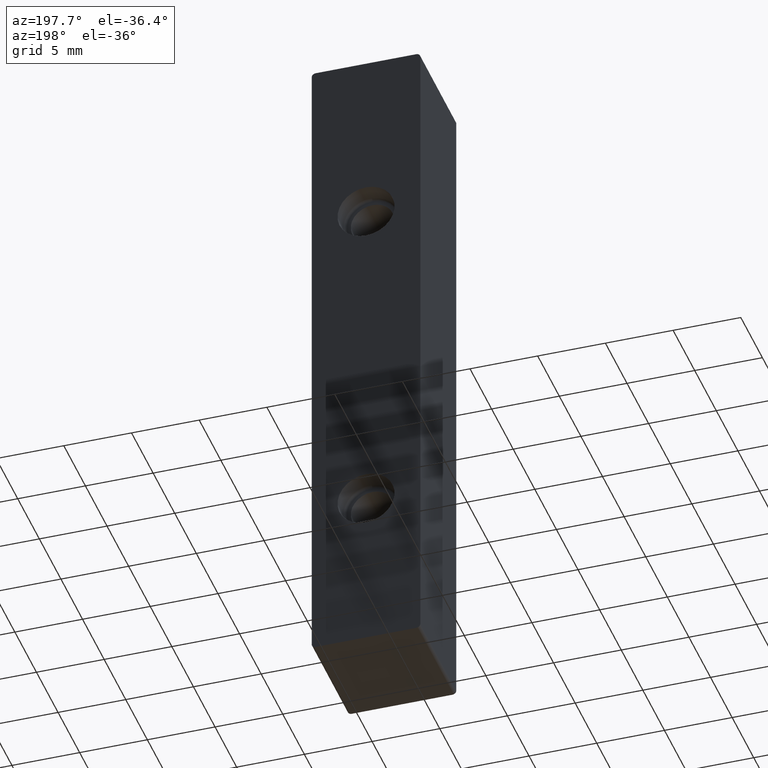
[diagram: clean part render]
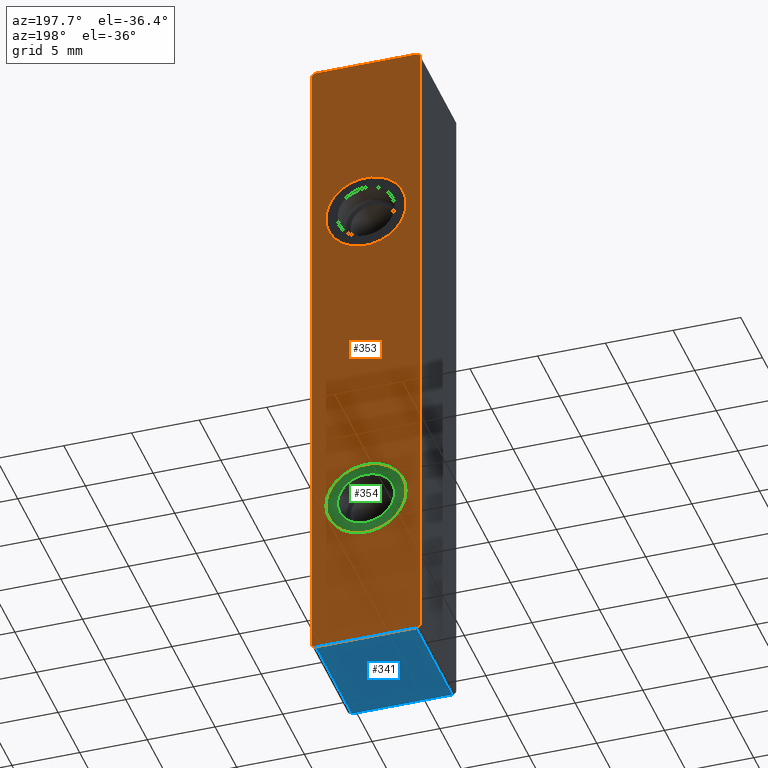
[diagram: same view with three faces highlighted in distinct colors, each labeled with its STEP entity id]
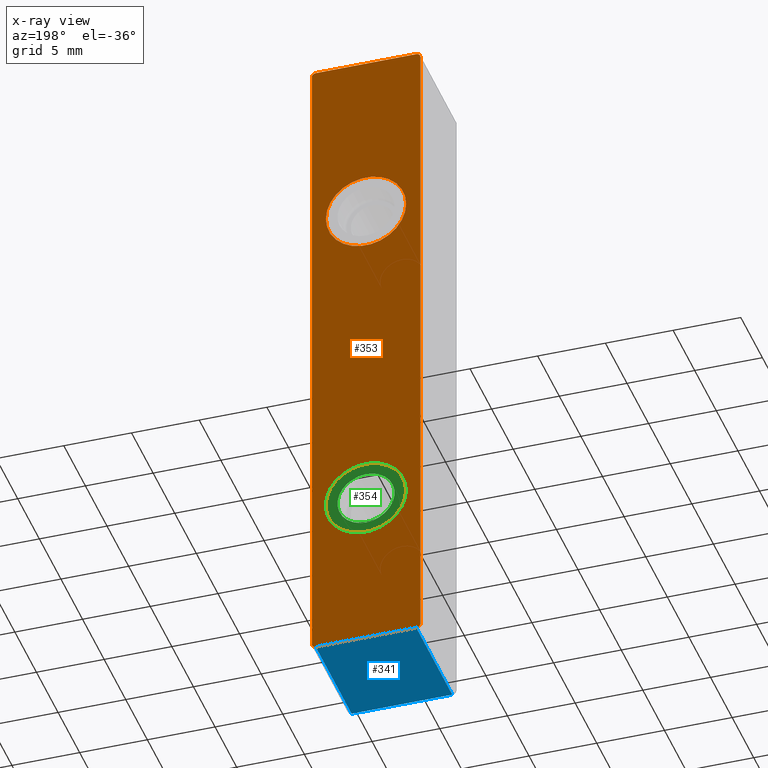
[diagram: x-ray of the same camera — body ghosted, the three highlighted faces saturated]
A machine part, auxiliary view with three faces highlighted in distinct colors.
The next image is the same camera in x-ray (body ghosted, the three faces saturated) — at least one of them is partly hidden behind the body in this view.
Their STEP definitions:

[orange] entity #353 — the highlighted planar face has unit normal (0, -1, 0).
#29=FACE_BOUND('',#73,.T.);
#30=FACE_BOUND('',#74,.T.);
#47=FACE_OUTER_BOUND('',#72,.T.);
#72=EDGE_LOOP('',(#294,#295,#296,#297,#298,#299,#300,#301));
#73=EDGE_LOOP('',(#302));
#74=EDGE_LOOP('',(#303));
#92=LINE('',#574,#117);
#95=LINE('',#582,#120);
#101=LINE('',#619,#126);
#102=LINE('',#622,#127);
#117=VECTOR('',#457,9.8814229);
#120=VECTOR('',#466,9.8814229);
#126=VECTOR('',#514,9.8814229);
#127=VECTOR('',#517,9.8814229);
#139=CIRCLE('',#391,0.296442686999985);
#140=CIRCLE('',#394,0.296442686999998);
#141=CIRCLE('',#397,0.296442686999991);
#152=CIRCLE('',#417,0.296442687000001);
#153=CIRCLE('',#418,2.96442687);
#154=CIRCLE('',#419,2.96442687);
#167=VERTEX_POINT('',#566);
#168=VERTEX_POINT('',#568);
#169=VERTEX_POINT('',#572);
#170=VERTEX_POINT('',#576);
#171=VERTEX_POINT('',#580);
#172=VERTEX_POINT('',#584);
#181=VERTEX_POINT('',#618);
#182=VERTEX_POINT('',#620);
#183=VERTEX_POINT('',#623);
#184=VERTEX_POINT('',#625);
#200=EDGE_CURVE('',#168,#167,#139,.T.);
#203=EDGE_CURVE('',#167,#169,#92,.T.);
#205=EDGE_CURVE('',#169,#170,#140,.T.);
#207=EDGE_CURVE('',#170,#171,#95,.T.);
#209=EDGE_CURVE('',#171,#172,#141,.T.);
#224=EDGE_CURVE('',#172,#181,#101,.T.);
#225=EDGE_CURVE('',#181,#182,#152,.T.);
#226=EDGE_CURVE('',#182,#168,#102,.T.);
#227=EDGE_CURVE('',#183,#183,#153,.T.);
#228=EDGE_CURVE('',#184,#184,#154,.T.);
#294=ORIENTED_EDGE('',*,*,#205,.T.);
#295=ORIENTED_EDGE('',*,*,#207,.T.);
#296=ORIENTED_EDGE('',*,*,#209,.T.);
#297=ORIENTED_EDGE('',*,*,#224,.T.);
#298=ORIENTED_EDGE('',*,*,#225,.T.);
#299=ORIENTED_EDGE('',*,*,#226,.T.);
#300=ORIENTED_EDGE('',*,*,#200,.T.);
#301=ORIENTED_EDGE('',*,*,#203,.T.);
#302=ORIENTED_EDGE('',*,*,#227,.F.);
#303=ORIENTED_EDGE('',*,*,#228,.F.);
#333=PLANE('',#416);
#353=ADVANCED_FACE('',(#47,#29,#30),#333,.F.);
#391=AXIS2_PLACEMENT_3D('',#569,#451,#452);
#394=AXIS2_PLACEMENT_3D('',#578,#461,#462);
#397=AXIS2_PLACEMENT_3D('',#586,#470,#471);
#416=AXIS2_PLACEMENT_3D('',#617,#512,#513);
#417=AXIS2_PLACEMENT_3D('',#621,#515,#516);
#418=AXIS2_PLACEMENT_3D('',#624,#518,#519);
#419=AXIS2_PLACEMENT_3D('',#626,#520,#521);
#451=DIRECTION('center_axis',(0.,1.,0.));
#452=DIRECTION('ref_axis',(0.,0.,-1.));
#457=DIRECTION('',(-1.,0.,1.18108832406932E-15));
#461=DIRECTION('center_axis',(0.,1.,0.));
#462=DIRECTION('ref_axis',(-1.,0.,0.));
#466=DIRECTION('',(2.65656556241314E-16,0.,1.));
#470=DIRECTION('center_axis',(0.,1.,0.));
#471=DIRECTION('ref_axis',(0.,0.,1.));
#512=DIRECTION('center_axis',(0.,-1.,0.));
#513=DIRECTION('ref_axis',(1.,0.,0.));
#514=DIRECTION('',(1.,0.,0.));
#515=DIRECTION('center_axis',(0.,1.,0.));
#516=DIRECTION('ref_axis',(1.,0.,0.));
#517=DIRECTION('',(-7.51072669634541E-16,0.,-1.));
#518=DIRECTION('center_axis',(0.,1.,0.));
#519=DIRECTION('ref_axis',(-1.,1.22464679914735E-16,9.76020241428709E-17));
#520=DIRECTION('center_axis',(0.,1.,0.));
#521=DIRECTION('ref_axis',(-1.,1.22464679914735E-16,9.76020241428709E-17));
#566=CARTESIAN_POINT('',(-19.3131137414975,10.8896525467827,-59.323580378623));
#568=CARTESIAN_POINT('',(-19.0166710544975,10.8896525467827,-59.027137691623));
#569=CARTESIAN_POINT('Origin',(-19.3131137414975,10.8896525467827,-59.027137691623));
#572=CARTESIAN_POINT('',(-26.7439437622975,10.8896525467827,-59.3235803786229));
#574=CARTESIAN_POINT('',(-26.7439437622975,10.8896525467827,-59.3235803786229));
#576=CARTESIAN_POINT('',(-27.0403864492975,10.8896525467827,-59.027137691623));
#578=CARTESIAN_POINT('Origin',(-26.7439437622975,10.8896525467827,-59.027137691623));
#580=CARTESIAN_POINT('',(-27.0403864492975,10.8896525467827,-9.47180184812295));
#582=CARTESIAN_POINT('',(-27.0403864492975,10.8896525467827,-9.47180184812295));
#584=CARTESIAN_POINT('',(-26.7439437622975,10.8896525467827,-9.17535916112296));
#586=CARTESIAN_POINT('Origin',(-26.7439437622975,10.8896525467827,-9.47180184812295));
#617=CARTESIAN_POINT('Origin',(-23.0285287518975,10.8896525467827,-34.249469769873));
#618=CARTESIAN_POINT('',(-19.3131137414975,10.8896525467827,-9.17535916112296));
#619=CARTESIAN_POINT('',(-19.3131137414975,10.8896525467827,-9.17535916112295));
#620=CARTESIAN_POINT('',(-19.0166710544975,10.8896525467827,-9.47180184812295));
#621=CARTESIAN_POINT('Origin',(-19.3131137414975,10.8896525467827,-9.47180184812295));
#622=CARTESIAN_POINT('',(-19.0166710544975,10.8896525467827,-59.027137691623));
#623=CARTESIAN_POINT('',(-20.064187807314,10.8896525467827,-22.0883381627806));
#624=CARTESIAN_POINT('Origin',(-23.028614677314,10.8896525467827,-22.0883381627806));
#625=CARTESIAN_POINT('',(-20.064187807314,10.8896525467827,-47.1624487715306));
#626=CARTESIAN_POINT('Origin',(-23.028614677314,10.8896525467827,-47.1624487715306));

[blue] entity #341 — the highlighted planar face has unit normal (-0, 0, -1).
#35=FACE_OUTER_BOUND('',#58,.T.);
#58=EDGE_LOOP('',(#250,#251,#252,#253));
#84=LINE('',#549,#109);
#89=LINE('',#567,#114);
#91=LINE('',#573,#116);
#92=LINE('',#574,#117);
#109=VECTOR('',#435,10.);
#114=VECTOR('',#450,9.8814229);
#116=VECTOR('',#456,9.8814229);
#117=VECTOR('',#457,9.8814229);
#158=VERTEX_POINT('',#546);
#159=VERTEX_POINT('',#548);
#167=VERTEX_POINT('',#566);
#169=VERTEX_POINT('',#572);
#190=EDGE_CURVE('',#159,#158,#84,.T.);
#199=EDGE_CURVE('',#159,#167,#89,.T.);
#202=EDGE_CURVE('',#158,#169,#91,.T.);
#203=EDGE_CURVE('',#167,#169,#92,.T.);
#250=ORIENTED_EDGE('',*,*,#190,.T.);
#251=ORIENTED_EDGE('',*,*,#202,.T.);
#252=ORIENTED_EDGE('',*,*,#203,.F.);
#253=ORIENTED_EDGE('',*,*,#199,.F.);
#329=PLANE('',#392);
#341=ADVANCED_FACE('',(#35),#329,.T.);
#392=AXIS2_PLACEMENT_3D('',#571,#454,#455);
#435=DIRECTION('',(-1.,0.,1.18108832406932E-15));
#450=DIRECTION('',(0.,1.,0.));
#454=DIRECTION('center_axis',(-1.18108832406932E-15,0.,-1.));
#455=DIRECTION('ref_axis',(-1.,0.,1.18108832406932E-15));
#456=DIRECTION('',(0.,1.,0.));
#457=DIRECTION('',(-1.,0.,1.18108832406932E-15));
#546=CARTESIAN_POINT('',(-26.7439437622975,2.56297272763272,-59.3235803786229));
#548=CARTESIAN_POINT('',(-19.3131137414975,2.56297272763272,-59.323580378623));
#549=CARTESIAN_POINT('',(-21.1708212466975,2.56297272763272,-59.323580378623));
#566=CARTESIAN_POINT('',(-19.3131137414975,10.8896525467827,-59.323580378623));
#567=CARTESIAN_POINT('',(-19.3131137414975,1.86297272763272,-59.323580378623));
#571=CARTESIAN_POINT('Origin',(-19.3131137414975,1.86297272763272,-59.323580378623));
#572=CARTESIAN_POINT('',(-26.7439437622975,10.8896525467827,-59.3235803786229));
#573=CARTESIAN_POINT('',(-26.7439437622975,1.86297272763272,-59.3235803786229));
#574=CARTESIAN_POINT('',(-26.7439437622975,10.8896525467827,-59.3235803786229));

[green] entity #354 — the highlighted planar face has unit normal (0, -1, 0).
#31=FACE_BOUND('',#76,.T.);
#48=FACE_OUTER_BOUND('',#75,.T.);
#75=EDGE_LOOP('',(#304));
#76=EDGE_LOOP('',(#305));
#142=CIRCLE('',#399,2.106225291135);
#154=CIRCLE('',#419,2.96442687);
#173=VERTEX_POINT('',#588);
#184=VERTEX_POINT('',#625);
#210=EDGE_CURVE('',#173,#173,#142,.T.);
#228=EDGE_CURVE('',#184,#184,#154,.T.);
#304=ORIENTED_EDGE('',*,*,#228,.T.);
#305=ORIENTED_EDGE('',*,*,#210,.T.);
#334=PLANE('',#420);
#354=ADVANCED_FACE('',(#48,#31),#334,.F.);
#399=AXIS2_PLACEMENT_3D('',#589,#474,#475);
#419=AXIS2_PLACEMENT_3D('',#626,#520,#521);
#420=AXIS2_PLACEMENT_3D('',#627,#522,#523);
#474=DIRECTION('center_axis',(0.,-1.,0.));
#475=DIRECTION('ref_axis',(0.,0.,-1.));
#520=DIRECTION('center_axis',(0.,1.,0.));
#521=DIRECTION('ref_axis',(-1.,1.22464679914735E-16,9.76020241428709E-17));
#522=DIRECTION('center_axis',(0.,-1.,0.));
#523=DIRECTION('ref_axis',(1.,0.,0.));
#588=CARTESIAN_POINT('',(-23.028614677314,10.8896525467827,-45.0562234803956));
#589=CARTESIAN_POINT('Origin',(-23.028614677314,10.8896525467827,-47.1624487715306));
#625=CARTESIAN_POINT('',(-20.064187807314,10.8896525467827,-47.1624487715306));
#626=CARTESIAN_POINT('Origin',(-23.028614677314,10.8896525467827,-47.1624487715306));
#627=CARTESIAN_POINT('Origin',(-23.0285287518975,10.8896525467827,-34.249469769873));